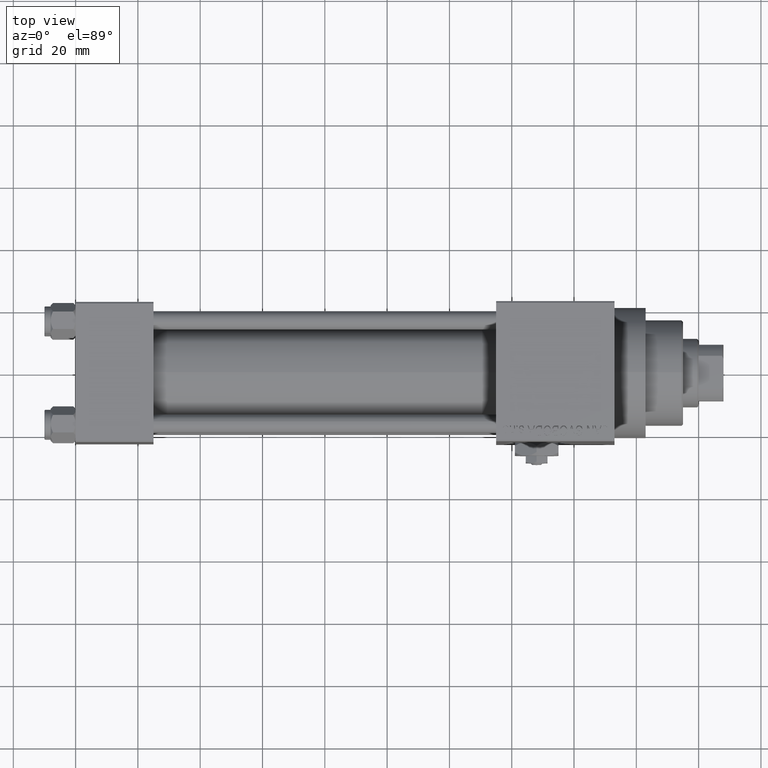
[diagram: clean part render]
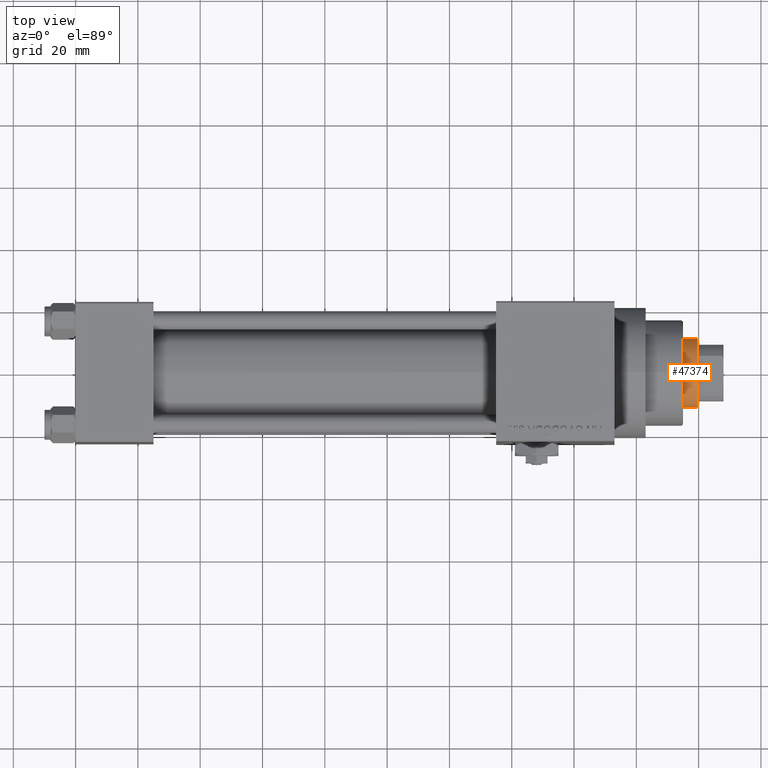
[diagram: same view with one face highlighted and labeled with its STEP entity id]
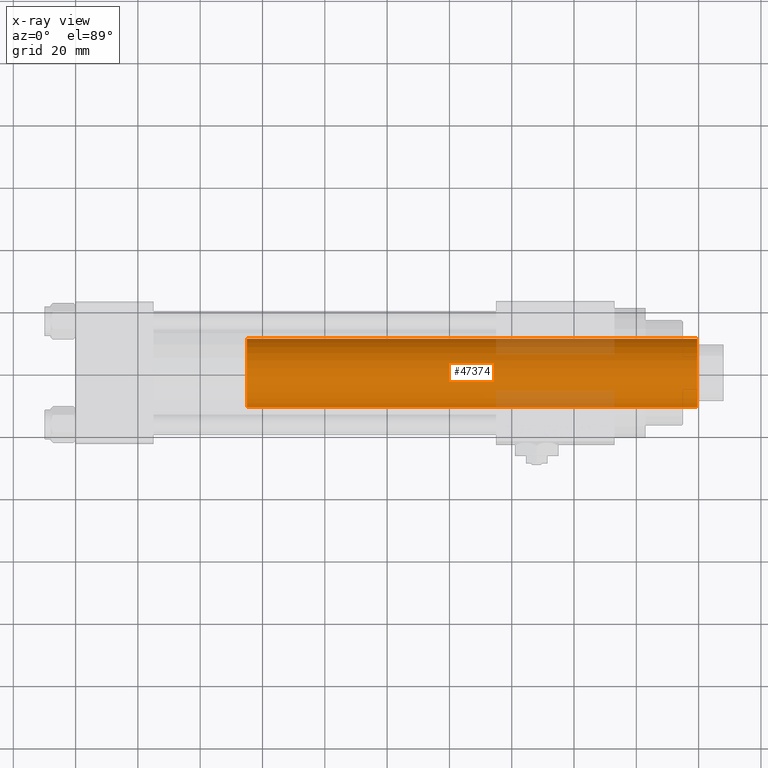
[diagram: x-ray of the same camera — body ghosted, the highlighted face saturated]
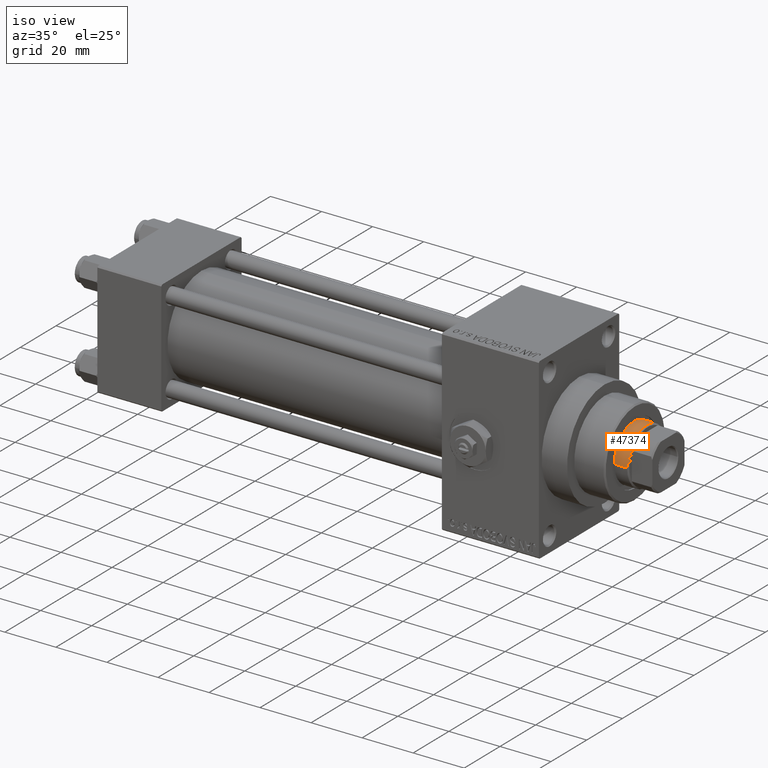
[diagram: same view with one face highlighted and labeled with its STEP entity id]
A machine part, top view. The second image highlights one B-rep face of the part: STEP entity #47374.
The next image is the same camera in x-ray: the body ghosted, the highlighted face saturated — about 12% of this face is hidden behind the body in this view.
A second angle (iso view) of the same face is appended — the face is thin or edge-on in the first view.
In plain terms, the highlighted cylindrical surface (edge-blend (fillet) strip) has radius 11 mm, axis along (-1, 0, 0).
Its self-contained STEP definition (entity closure, byte-faithful):
#2461 = ORIENTED_EDGE ( 'NONE', *, *, #34262, .T. ) ;
#4303 = CARTESIAN_POINT ( 'NONE',  ( -11.00000000000000000, 0.000000000000000000, 175.0000000000000000 ) ) ;
#7634 = CARTESIAN_POINT ( 'NONE',  ( -11.00000000000000000, 0.000000000000000000, 174.5000000000000284 ) ) ;
#7692 = VECTOR ( 'NONE', #19182, 1000.000000000000000 ) ;
#7849 = ORIENTED_EDGE ( 'NONE', *, *, #30978, .T. ) ;
#8511 = AXIS2_PLACEMENT_3D ( 'NONE', #26917, #12079, #16289 ) ;
#8807 = VERTEX_POINT ( 'NONE', #29139 ) ;
#9066 = CARTESIAN_POINT ( 'NONE',  ( -11.00000000000000000, 0.000000000000000000, 30.00000000000000000 ) ) ;
#10094 = CIRCLE ( 'NONE', #8511, 11.00000000000000000 ) ;
#12079 = DIRECTION ( 'NONE',  ( 0.000000000000000000, 0.000000000000000000, -1.000000000000000000 ) ) ;
#14229 = CARTESIAN_POINT ( 'NONE',  ( 0.000000000000000000, 0.000000000000000000, 175.0000000000000000 ) ) ;
#14821 = AXIS2_PLACEMENT_3D ( 'NONE', #42408, #38711, #42644 ) ;
#15477 = LINE ( 'NONE', #42111, #7692 ) ;
#15678 = ORIENTED_EDGE ( 'NONE', *, *, #18941, .T. ) ;
#16289 = DIRECTION ( 'NONE',  ( 1.000000000000000000, 0.000000000000000000, 0.000000000000000000 ) ) ;
#17695 = CYLINDRICAL_SURFACE ( 'NONE', #30974, 11.00000000000000000 ) ;
#17920 = EDGE_LOOP ( 'NONE', ( #38040, #7849, #15678, #2461 ) ) ;
#18187 = FACE_OUTER_BOUND ( 'NONE', #17920, .T. ) ;
#18941 = EDGE_CURVE ( 'NONE', #45350, #26345, #45979, .T. ) ;
#19182 = DIRECTION ( 'NONE',  ( -0.000000000000000000, -0.000000000000000000, -1.000000000000000000 ) ) ;
#22088 = CARTESIAN_POINT ( 'NONE',  ( 11.00000000000000000, 1.347111479062088405E-15, 30.00000000000000000 ) ) ;
#26345 = VERTEX_POINT ( 'NONE', #9066 ) ;
#26917 = CARTESIAN_POINT ( 'NONE',  ( 0.000000000000000000, 0.000000000000000000, 174.5000000000000284 ) ) ;
#29139 = CARTESIAN_POINT ( 'NONE',  ( 11.00000000000000000, 1.347111479062088405E-15, 174.5000000000000284 ) ) ;
#30520 = EDGE_CURVE ( 'NONE', #8807, #48761, #15477, .T. ) ;
#30974 = AXIS2_PLACEMENT_3D ( 'NONE', #14229, #33245, #43574 ) ;
#30978 = EDGE_CURVE ( 'NONE', #8807, #45350, #10094, .T. ) ;
#33245 = DIRECTION ( 'NONE',  ( -0.000000000000000000, -0.000000000000000000, -1.000000000000000000 ) ) ;
#34262 = EDGE_CURVE ( 'NONE', #26345, #48761, #36096, .T. ) ;
#36096 = CIRCLE ( 'NONE', #14821, 11.00000000000000000 ) ;
#38040 = ORIENTED_EDGE ( 'NONE', *, *, #30520, .F. ) ;
#38174 = VECTOR ( 'NONE', #42308, 1000.000000000000000 ) ;
#38711 = DIRECTION ( 'NONE',  ( 0.000000000000000000, 0.000000000000000000, 1.000000000000000000 ) ) ;
#42111 = CARTESIAN_POINT ( 'NONE',  ( 11.00000000000000000, 1.347111479062088405E-15, 175.0000000000000000 ) ) ;
#42308 = DIRECTION ( 'NONE',  ( -0.000000000000000000, -0.000000000000000000, -1.000000000000000000 ) ) ;
#42408 = CARTESIAN_POINT ( 'NONE',  ( 0.000000000000000000, 0.000000000000000000, 30.00000000000000000 ) ) ;
#42644 = DIRECTION ( 'NONE',  ( 1.000000000000000000, 0.000000000000000000, 0.000000000000000000 ) ) ;
#43574 = DIRECTION ( 'NONE',  ( -1.000000000000000000, 0.000000000000000000, 0.000000000000000000 ) ) ;
#45350 = VERTEX_POINT ( 'NONE', #7634 ) ;
#45979 = LINE ( 'NONE', #4303, #38174 ) ;
#47374 = ADVANCED_FACE ( 'NONE', ( #18187 ), #17695, .T. ) ;
#48761 = VERTEX_POINT ( 'NONE', #22088 ) ;